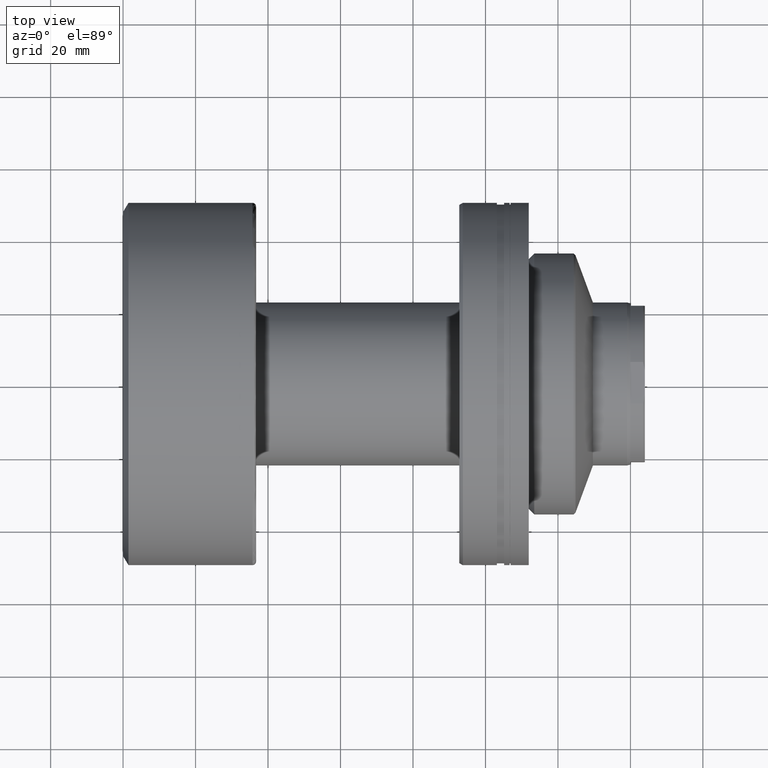
[diagram: clean part render]
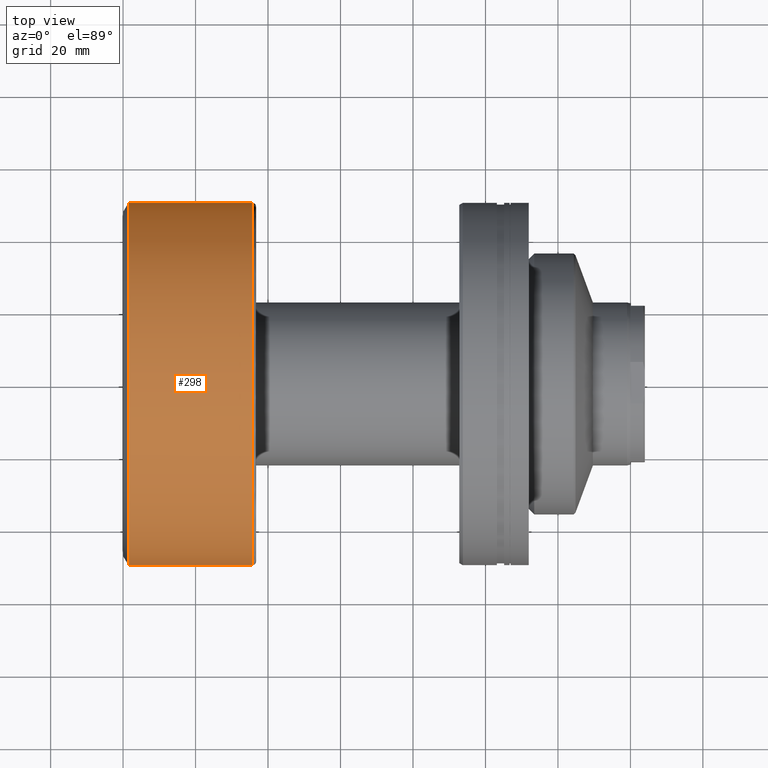
[diagram: same view with one face highlighted and labeled with its STEP entity id]
A machine part, top view. The second image highlights one B-rep face of the part: STEP entity #298.
In plain terms, the highlighted cylindrical surface (partial cylindrical patch) has radius 50 mm, axis along (-1, -0, -0).
Its self-contained STEP definition (entity closure, byte-faithful):
#16 = CARTESIAN_POINT ( 'NONE',  ( -5.347711610345329959E-16, 50.00000000000000000, 6.123233995736766085E-15 ) ) ;
#32 = VERTEX_POINT ( 'NONE', #1175 ) ;
#132 = CARTESIAN_POINT ( 'NONE',  ( 1.500000000000006217, -50.00000000000000000, 6.123233995736766085E-15 ) ) ;
#161 = CARTESIAN_POINT ( 'NONE',  ( 5.347711610345329959E-16, -50.00000000000000000, 0.000000000000000000 ) ) ;
#271 = EDGE_CURVE ( 'NONE', #32, #375, #424, .T. ) ;
#298 = ADVANCED_FACE ( 'NONE', ( #2110 ), #880, .T. ) ;
#309 = LINE ( 'NONE', #16, #1262 ) ;
#319 = ORIENTED_EDGE ( 'NONE', *, *, #967, .F. ) ;
#375 = VERTEX_POINT ( 'NONE', #469 ) ;
#424 = CIRCLE ( 'NONE', #1739, 50.00000000000000000 ) ;
#450 = EDGE_CURVE ( 'NONE', #32, #1054, #1771, .T. ) ;
#469 = CARTESIAN_POINT ( 'NONE',  ( 35.70000000000000284, 50.00000000000000000, 6.123233995736766085E-15 ) ) ;
#521 = DIRECTION ( 'NONE',  ( 8.673617379884035472E-18, -1.000000000000000000, 0.000000000000000000 ) ) ;
#621 = CARTESIAN_POINT ( 'NONE',  ( 1.500000000000005551, 50.00000000000000000, 0.000000000000000000 ) ) ;
#823 = ORIENTED_EDGE ( 'NONE', *, *, #271, .T. ) ;
#832 = ORIENTED_EDGE ( 'NONE', *, *, #1408, .T. ) ;
#880 = CYLINDRICAL_SURFACE ( 'NONE', #1917, 50.00000000000000000 ) ;
#894 = DIRECTION ( 'NONE',  ( -1.000000000000000000, -1.069542322069065801E-17, -0.000000000000000000 ) ) ;
#904 = VERTEX_POINT ( 'NONE', #621 ) ;
#908 = VECTOR ( 'NONE', #1155, 1000.000000000000000 ) ;
#967 = EDGE_CURVE ( 'NONE', #1054, #904, #2178, .T. ) ;
#1054 = VERTEX_POINT ( 'NONE', #132 ) ;
#1083 = EDGE_LOOP ( 'NONE', ( #823, #832, #319, #1483 ) ) ;
#1155 = DIRECTION ( 'NONE',  ( -1.000000000000000000, -1.069542322069065801E-17, -0.000000000000000000 ) ) ;
#1175 = CARTESIAN_POINT ( 'NONE',  ( 35.70000000000000284, -50.00000000000000000, 0.000000000000000000 ) ) ;
#1241 = CARTESIAN_POINT ( 'NONE',  ( 1.500000000000005995, 1.604313483103604941E-17, 0.000000000000000000 ) ) ;
#1262 = VECTOR ( 'NONE', #1627, 1000.000000000000000 ) ;
#1408 = EDGE_CURVE ( 'NONE', #375, #904, #309, .T. ) ;
#1427 = CARTESIAN_POINT ( 'NONE',  ( 0.000000000000000000, 0.000000000000000000, 0.000000000000000000 ) ) ;
#1483 = ORIENTED_EDGE ( 'NONE', *, *, #450, .F. ) ;
#1616 = DIRECTION ( 'NONE',  ( 0.000000000000000000, -1.000000000000000000, 0.000000000000000000 ) ) ;
#1623 = DIRECTION ( 'NONE',  ( -1.000000000000000000, -1.069542322069065801E-17, -0.000000000000000000 ) ) ;
#1627 = DIRECTION ( 'NONE',  ( -1.000000000000000000, -1.069542322069065801E-17, -0.000000000000000000 ) ) ;
#1739 = AXIS2_PLACEMENT_3D ( 'NONE', #1971, #894, #1616 ) ;
#1771 = LINE ( 'NONE', #161, #908 ) ;
#1774 = DIRECTION ( 'NONE',  ( -1.000000000000000000, -1.069542322069065801E-17, -0.000000000000000000 ) ) ;
#1917 = AXIS2_PLACEMENT_3D ( 'NONE', #1427, #1623, #1941 ) ;
#1941 = DIRECTION ( 'NONE',  ( 1.069542322069065955E-17, -1.000000000000000000, 0.000000000000000000 ) ) ;
#1971 = CARTESIAN_POINT ( 'NONE',  ( 35.70000000000000284, 3.818266089786565135E-16, 0.000000000000000000 ) ) ;
#1998 = AXIS2_PLACEMENT_3D ( 'NONE', #1241, #1774, #521 ) ;
#2110 = FACE_OUTER_BOUND ( 'NONE', #1083, .T. ) ;
#2178 = CIRCLE ( 'NONE', #1998, 50.00000000000000000 ) ;